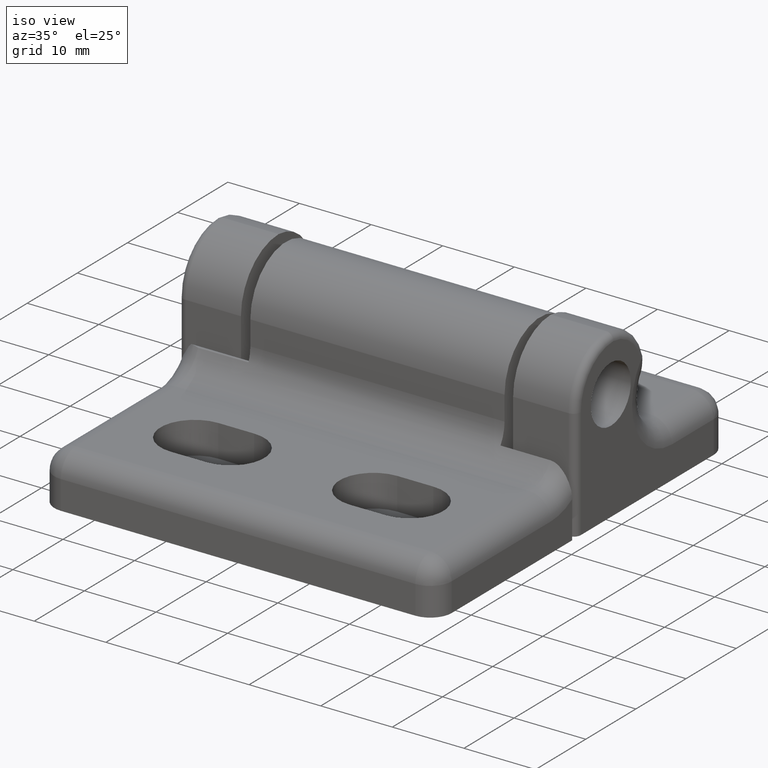
[diagram: clean part render]
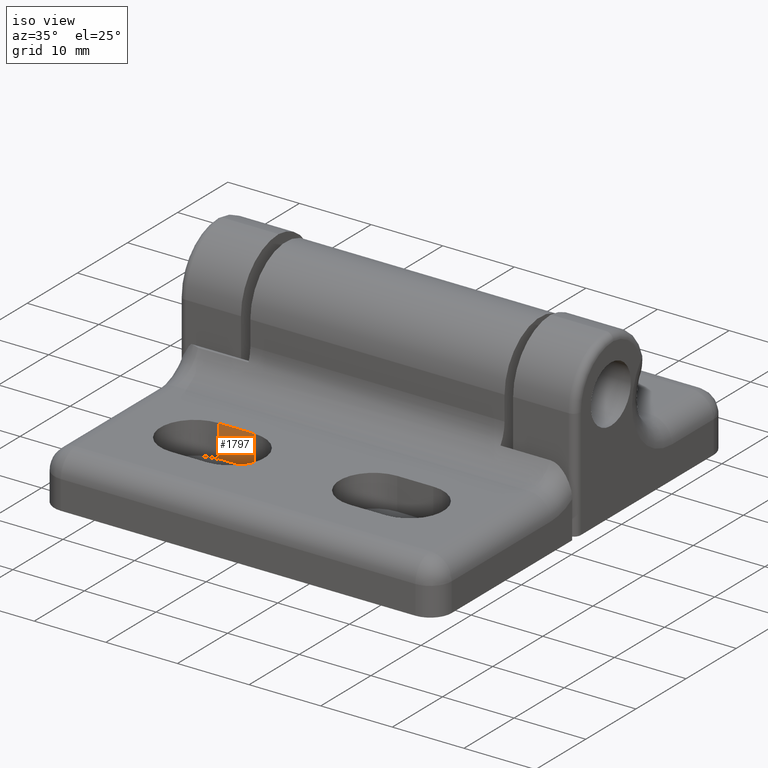
[diagram: same view with one face highlighted and labeled with its STEP entity id]
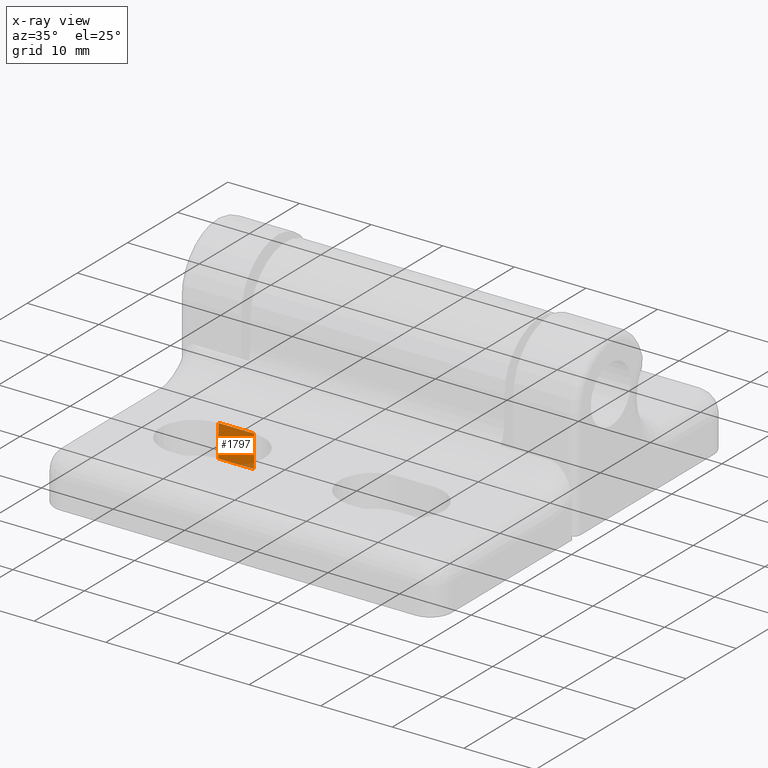
[diagram: x-ray of the same camera — body ghosted, the highlighted face saturated]
A machine part, iso view. The second image highlights one B-rep face of the part: STEP entity #1797.
The next image is the same camera in x-ray: the body ghosted, the highlighted face saturated — about 4% of this face is hidden behind the body in this view.
In plain terms, the highlighted planar face has unit normal (0, -1, -0).
Its self-contained STEP definition (entity closure, byte-faithful):
#89=PLANE('',#1997);
#224=FACE_OUTER_BOUND('',#343,.T.);
#343=EDGE_LOOP('',(#1645,#1646,#1647,#1648));
#478=LINE('',#3227,#620);
#482=LINE('',#3241,#624);
#486=LINE('',#3251,#628);
#487=LINE('',#3254,#629);
#620=VECTOR('',#2506,5.);
#624=VECTOR('',#2522,4.5);
#628=VECTOR('',#2532,4.5);
#629=VECTOR('',#2537,5.);
#880=VERTEX_POINT('',#3225);
#881=VERTEX_POINT('',#3226);
#885=VERTEX_POINT('',#3240);
#888=VERTEX_POINT('',#3250);
#1130=EDGE_CURVE('',#880,#881,#478,.T.);
#1137=EDGE_CURVE('',#880,#885,#482,.T.);
#1142=EDGE_CURVE('',#881,#888,#486,.T.);
#1144=EDGE_CURVE('',#888,#885,#487,.T.);
#1645=ORIENTED_EDGE('',*,*,#1144,.F.);
#1646=ORIENTED_EDGE('',*,*,#1142,.F.);
#1647=ORIENTED_EDGE('',*,*,#1130,.F.);
#1648=ORIENTED_EDGE('',*,*,#1137,.T.);
#1797=ADVANCED_FACE('',(#224),#89,.T.);
#1997=AXIS2_PLACEMENT_3D('',#3253,#2535,#2536);
#2506=DIRECTION('',(1.,0.,0.));
#2522=DIRECTION('',(0.,0.,-1.));
#2532=DIRECTION('',(0.,0.,-1.));
#2535=DIRECTION('center_axis',(0.,-1.,0.));
#2536=DIRECTION('ref_axis',(0.,0.,-1.));
#2537=DIRECTION('',(-1.,0.,0.));
#3225=CARTESIAN_POINT('',(-5.,4.75,7.5));
#3226=CARTESIAN_POINT('',(0.,4.75,7.5));
#3227=CARTESIAN_POINT('',(-5.,4.75,7.5));
#3240=CARTESIAN_POINT('',(-5.,4.75,3.));
#3241=CARTESIAN_POINT('',(-5.,4.75,7.5));
#3250=CARTESIAN_POINT('',(0.,4.75,3.));
#3251=CARTESIAN_POINT('',(0.,4.75,7.5));
#3253=CARTESIAN_POINT('Origin',(0.,4.75,12.));
#3254=CARTESIAN_POINT('',(0.,4.75,3.));